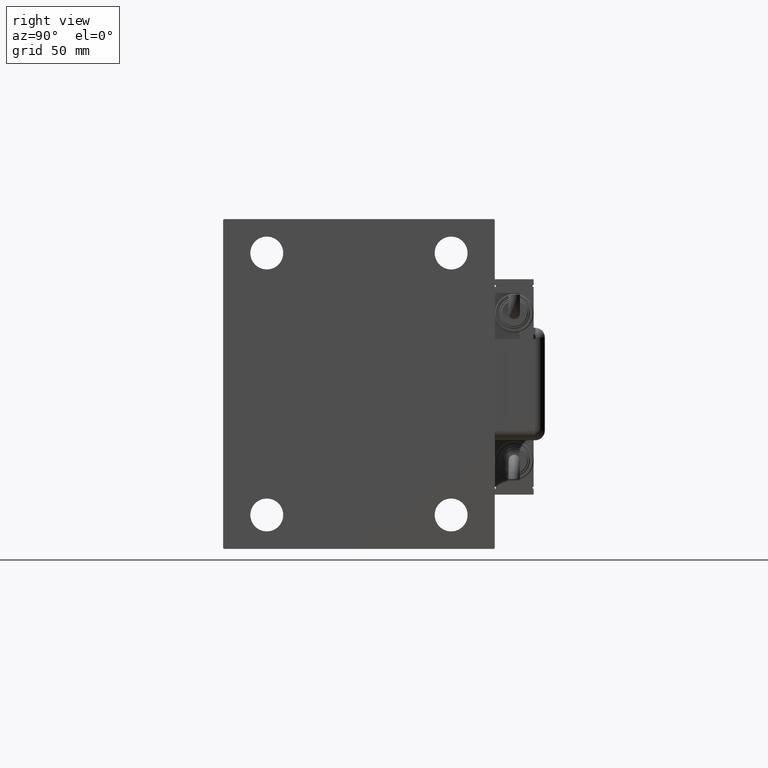
[diagram: clean part render]
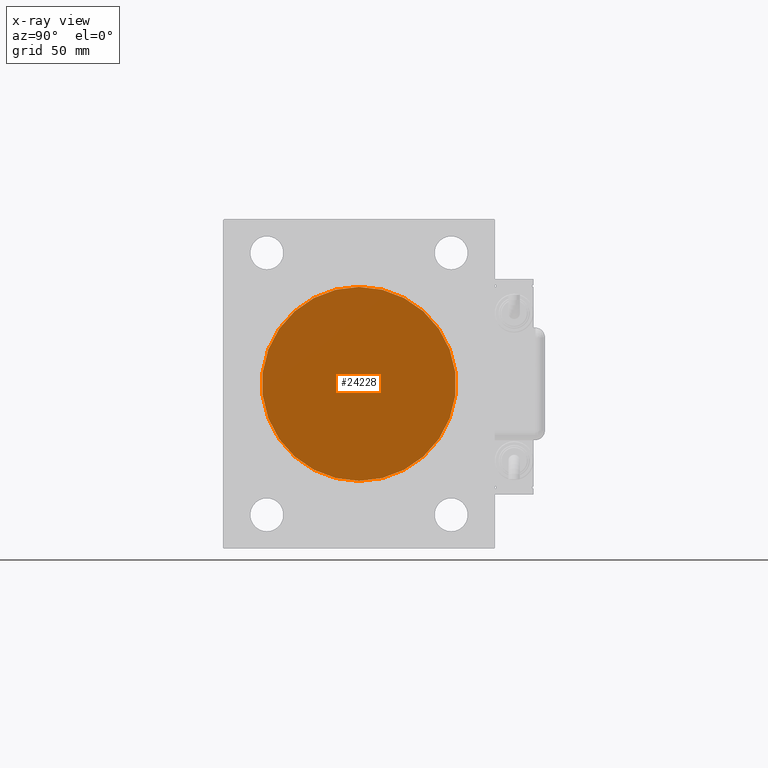
[diagram: x-ray — body ghosted, one internal face saturated and labeled with its STEP entity id]
A machine part, right view, then the same camera in x-ray: the body is ghosted and one INTERNAL B-rep face — a face not visible from any outside direction — is saturated and labeled: STEP entity #24228.
In plain terms, the highlighted planar face has unit normal (-1, 0, 0).
Its self-contained STEP definition (entity closure, byte-faithful):
#1793 = ORIENTED_EDGE ( 'NONE', *, *, #13149, .T. ) ;
#2593 = CARTESIAN_POINT ( 'NONE',  ( 51.00000000000000000, 0.000000000000000000, 0.000000000000000000 ) ) ;
#10287 = CARTESIAN_POINT ( 'NONE',  ( 51.00000000000000000, 0.000000000000000000, 50.00000000000000000 ) ) ;
#11685 = DIRECTION ( 'NONE',  ( -1.000000000000000000, 0.000000000000000000, 0.000000000000000000 ) ) ;
#12701 = EDGE_LOOP ( 'NONE', ( #22167, #1793 ) ) ;
#13149 = EDGE_CURVE ( 'NONE', #16081, #52075, #38559, .T. ) ;
#13213 = AXIS2_PLACEMENT_3D ( 'NONE', #2593, #31789, #56814 ) ;
#15487 = EDGE_CURVE ( 'NONE', #52075, #16081, #35620, .T. ) ;
#16081 = VERTEX_POINT ( 'NONE', #46026 ) ;
#22167 = ORIENTED_EDGE ( 'NONE', *, *, #15487, .T. ) ;
#22801 = CARTESIAN_POINT ( 'NONE',  ( 51.00000000000000000, 0.000000000000000000, 0.000000000000000000 ) ) ;
#23435 = AXIS2_PLACEMENT_3D ( 'NONE', #58948, #11685, #60205 ) ;
#24228 = ADVANCED_FACE ( 'NONE', ( #52906 ), #27257, .T. ) ;
#27257 = PLANE ( 'NONE',  #61320 ) ;
#31789 = DIRECTION ( 'NONE',  ( -1.000000000000000000, 0.000000000000000000, 0.000000000000000000 ) ) ;
#32636 = DIRECTION ( 'NONE',  ( -1.000000000000000000, 0.000000000000000000, 0.000000000000000000 ) ) ;
#35620 = CIRCLE ( 'NONE', #23435, 50.00000000000000000 ) ;
#38559 = CIRCLE ( 'NONE', #13213, 50.00000000000000000 ) ;
#46026 = CARTESIAN_POINT ( 'NONE',  ( 51.00000000000000000, 6.123233995736766085E-15, -50.00000000000000000 ) ) ;
#47518 = DIRECTION ( 'NONE',  ( 0.000000000000000000, 0.000000000000000000, 1.000000000000000000 ) ) ;
#52075 = VERTEX_POINT ( 'NONE', #10287 ) ;
#52906 = FACE_OUTER_BOUND ( 'NONE', #12701, .T. ) ;
#56814 = DIRECTION ( 'NONE',  ( 0.000000000000000000, 0.000000000000000000, 1.000000000000000000 ) ) ;
#58948 = CARTESIAN_POINT ( 'NONE',  ( 51.00000000000000000, 0.000000000000000000, 0.000000000000000000 ) ) ;
#60205 = DIRECTION ( 'NONE',  ( 0.000000000000000000, 0.000000000000000000, 1.000000000000000000 ) ) ;
#61320 = AXIS2_PLACEMENT_3D ( 'NONE', #22801, #32636, #47518 ) ;